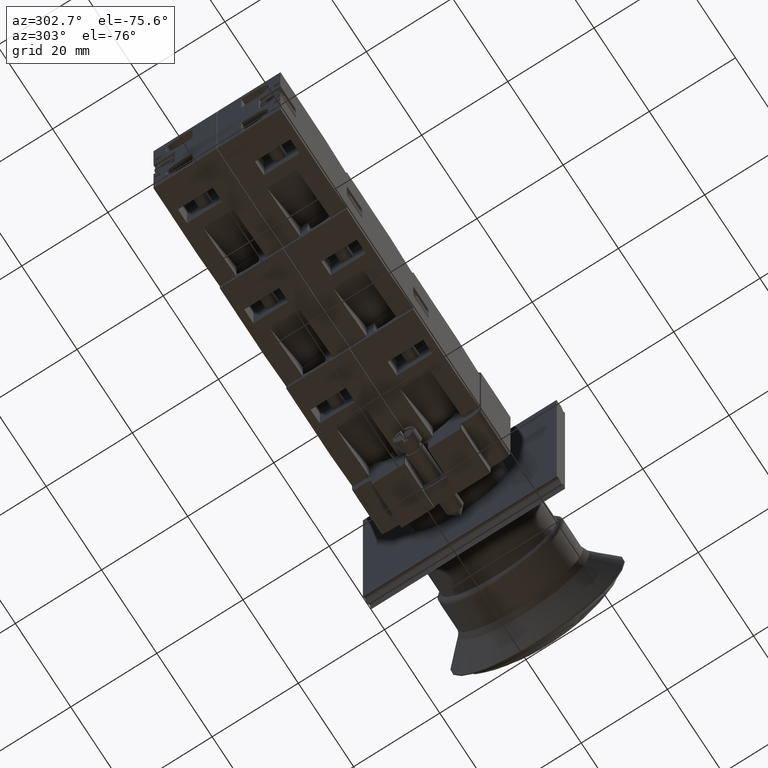
[diagram: clean part render]
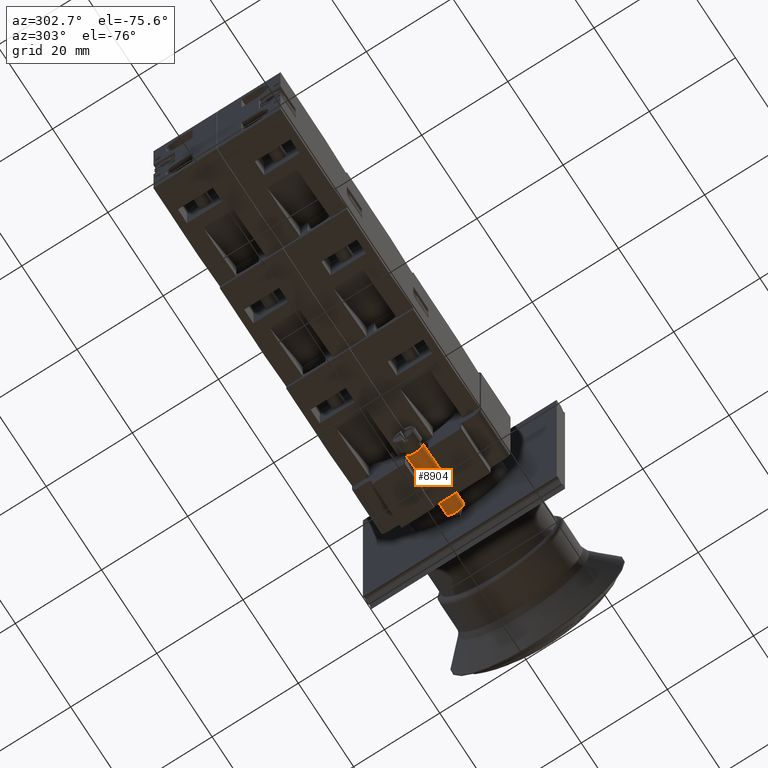
[diagram: same view with one face highlighted and labeled with its STEP entity id]
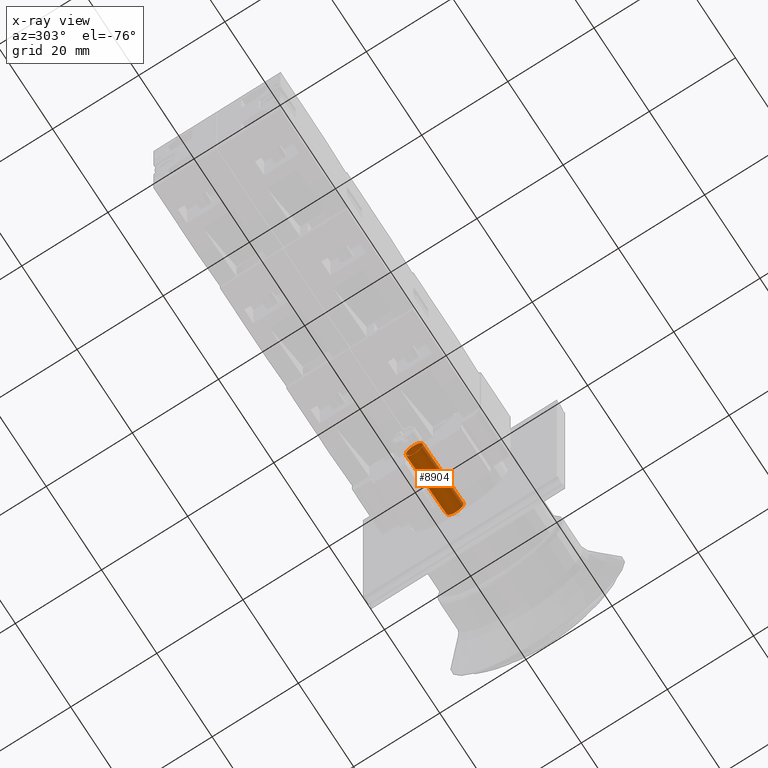
[diagram: x-ray of the same camera — body ghosted, the highlighted face saturated]
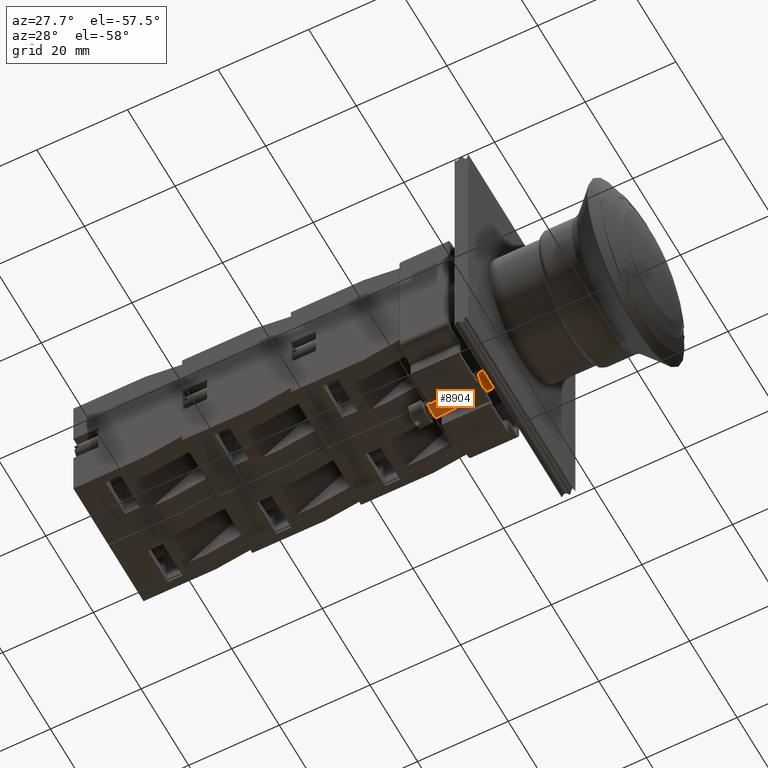
[diagram: same view with one face highlighted and labeled with its STEP entity id]
A machine part, auxiliary view. The second image highlights one B-rep face of the part: STEP entity #8904.
The next image is the same camera in x-ray: the body ghosted, the highlighted face saturated — about 0% of this face is hidden behind the body in this view.
A second angle (auxiliary view) of the same face is appended — the face is thin or edge-on in the first view.
In plain terms, the highlighted cylindrical surface (bore or boss wall) has radius 2 mm, axis along (0.9914, 0, 0.1305).
Its self-contained STEP definition (entity closure, byte-faithful):
#8873=CARTESIAN_POINT('',(-1.999999999999998,0.0,-1.119999999999999));
#8874=VERTEX_POINT('',#8873);
#8875=CARTESIAN_POINT('',(0.0,0.0,-1.119999999999999));
#8876=DIRECTION('',(0.0,0.0,-1.0));
#8877=DIRECTION('',(-1.0,0.0,0.0));
#8878=AXIS2_PLACEMENT_3D('',#8875,#8876,#8877);
#8879=CIRCLE('',#8878,1.999999999999998);
#8880=EDGE_CURVE('',#8874,#8874,#8879,.T.);
#8885=CARTESIAN_POINT('',(0.0,0.0,-8.559999999999999));
#8886=DIRECTION('',(0.0,0.0,-1.0));
#8887=DIRECTION('',(-1.0,0.0,0.0));
#8888=AXIS2_PLACEMENT_3D('',#8885,#8886,#8887);
#8889=CYLINDRICAL_SURFACE('',#8888,1.999999999999999);
#8890=CARTESIAN_POINT('',(-2.000000000000000,0.0,-15.999999999999998));
#8891=VERTEX_POINT('',#8890);
#8892=CARTESIAN_POINT('',(0.0,0.0,-15.999999999999998));
#8893=DIRECTION('',(0.0,0.0,-1.0));
#8894=DIRECTION('',(-1.0,0.0,0.0));
#8895=AXIS2_PLACEMENT_3D('',#8892,#8893,#8894);
#8896=CIRCLE('',#8895,2.000000000000000);
#8897=EDGE_CURVE('',#8891,#8891,#8896,.T.);
#8898=ORIENTED_EDGE('',*,*,#8897,.F.);
#8899=EDGE_LOOP('',(#8898));
#8900=FACE_OUTER_BOUND('',#8899,.T.);
#8901=ORIENTED_EDGE('',*,*,#8880,.T.);
#8902=EDGE_LOOP('',(#8901));
#8903=FACE_BOUND('',#8902,.T.);
#8904=ADVANCED_FACE('',(#8900,#8903),#8889,.T.);